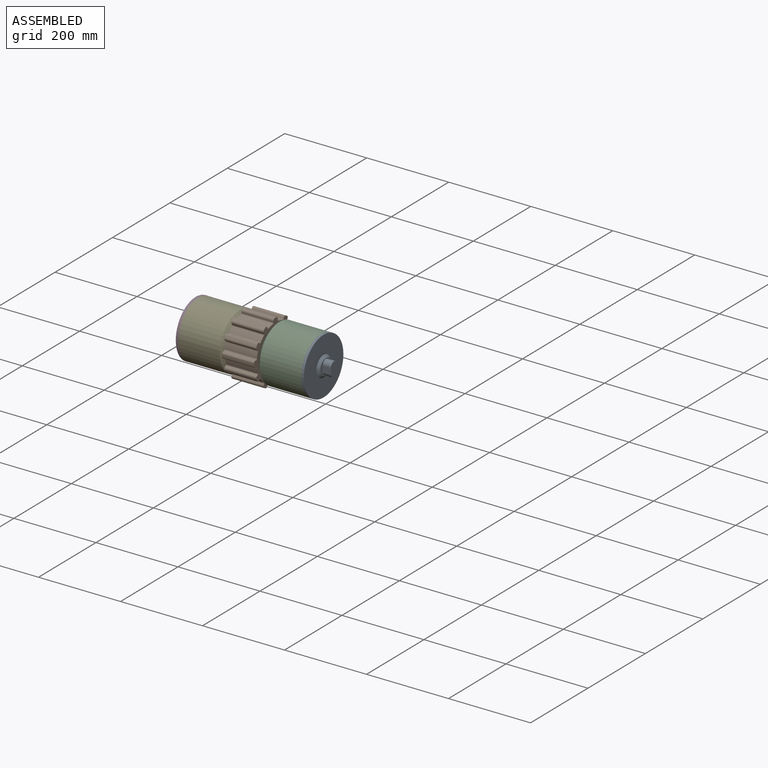
[diagram: assembled view]
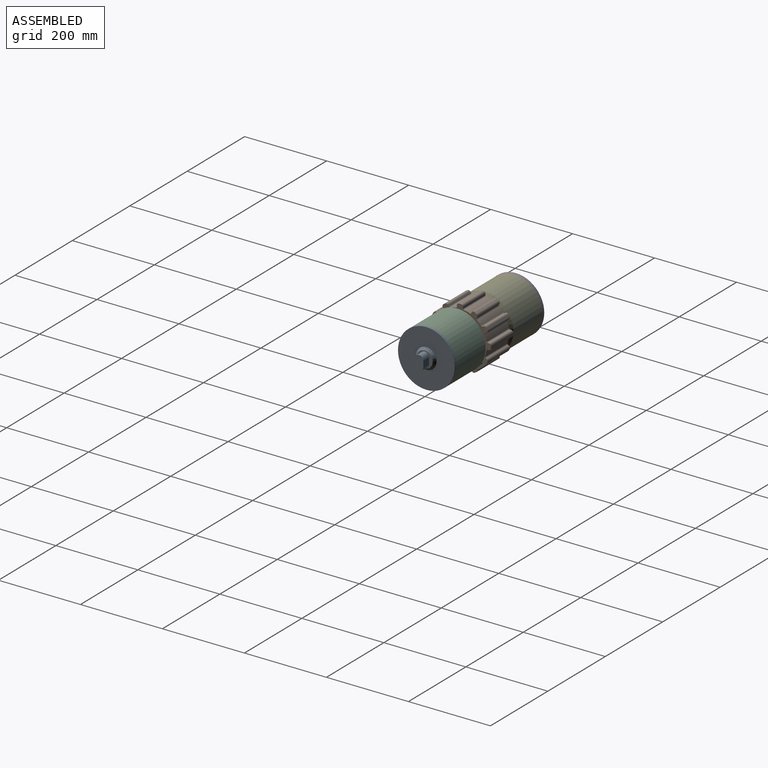
[diagram: assembled view, second angle]
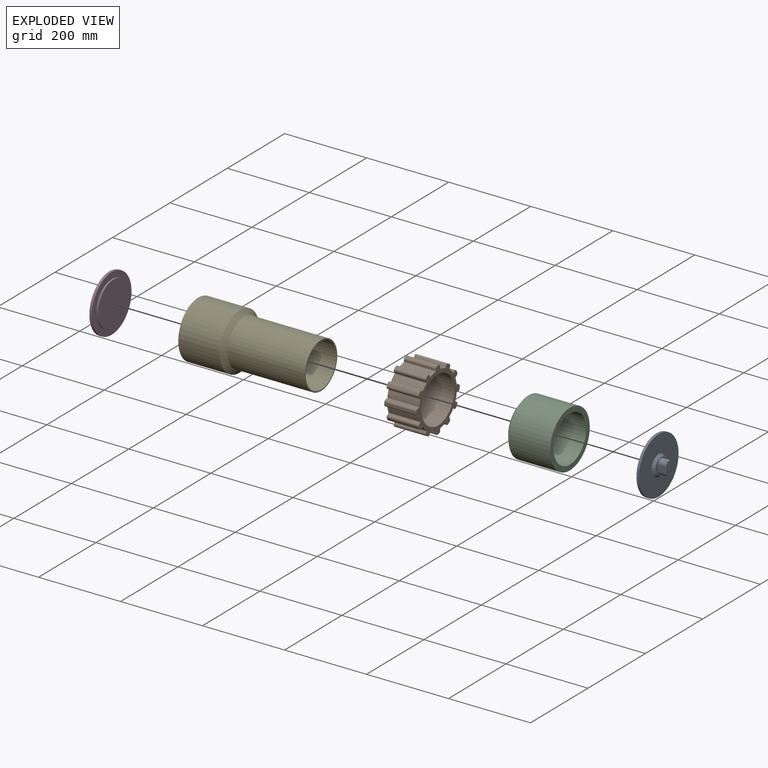
[diagram: exploded view]
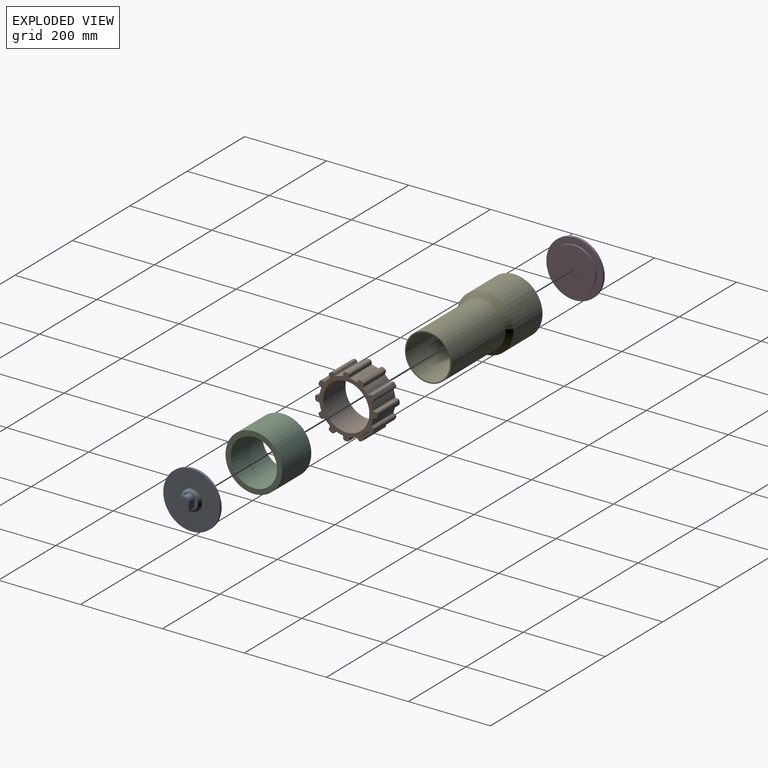
[diagram: exploded view, second angle]
ASSEMBLY  parts=5 mates=7
PART A: 12 faces, bbox 138.3x138.3x35.5 mm
  f0: plane 39x39mm, normal (0,0,1), area 554.2mm2, adj f2,f7,f8,f9,f10
  f1: plane 107x107mm, normal (0,0,-1), area 8992mm2, adj f6
  f2: cone r=25mm half-angle=45deg, axis (0,0,-1), area 1087.4mm2, adj f0,f3
  f3: plane 138.3x138.3mm, normal (0,0,1), area 13058.7mm2, adj f2,f4
  f4: cylinder r=69.15mm len=138.3mm, axis (0,0,1), area 2606.9mm2, adj f3,f5
  f5: plane 138.3x138.3mm, normal (0,0,-1), area 6030.2mm2, adj f4,f6
  f6: cylinder r=53.5mm len=107mm, axis (0,0,1), area 1344.6mm2, adj f1,f5
  f7: cylinder r=10.5mm len=21mm, axis (0,0,-1), area 659.7mm2, adj f0,f8,f10,f11
  f8: plane 20x14mm, normal (-1,0,0), area 280mm2, adj f0,f7,f9,f11
  f9: cylinder r=10.5mm len=21mm, axis (0,0,-1), area 659.7mm2, adj f0,f8,f10,f11
  f10: plane 20x14mm, normal (1,0,0), area 280mm2, adj f0,f7,f9,f11
  f11: plane 35x21mm, normal (0,0,1), area 640.4mm2, adj f7,f8,f9,f10
PART B: 99 faces, bbox 151.4x78x151.4 mm
  f0: cylinder r=65.7mm len=78mm, axis (0,1,0), area 1175mm2, adj f13,f14,f21,f97
  f1: cylinder r=65.7mm len=78mm, axis (0,1,0), area 1175mm2, adj f13,f14,f90,f98
  f2: cylinder r=65.7mm len=78mm, axis (0,1,0), area 1175mm2, adj f13,f14,f83,f91
  f3: cylinder r=65.7mm len=78mm, axis (0,1,0), area 1175mm2, adj f13,f14,f76,f84
  f4: cylinder r=65.7mm len=78mm, axis (0,1,0), area 1175mm2, adj f13,f14,f69,f77
  f5: cylinder r=65.7mm len=78mm, axis (0,1,0), area 1175mm2, adj f13,f14,f62,f70
  f6: cylinder r=65.7mm len=78mm, axis (0,1,0), area 1175mm2, adj f13,f14,f55,f63
  f7: cylinder r=65.7mm len=78mm, axis (0,1,0), area 1175mm2, adj f13,f14,f48,f56
  f8: cylinder r=65.7mm len=78mm, axis (0,1,0), area 1175mm2, adj f13,f14,f41,f49
  f9: cylinder r=65.7mm len=78mm, axis (0,1,0), area 1175mm2, adj f13,f14,f34,f42
  f10: cylinder r=65.7mm len=78mm, axis (0,1,0), area 1175mm2, adj f13,f14,f27,f35
  f11: cylinder r=65.7mm len=78mm, axis (0,1,0), area 1175mm2, adj f13,f14,f20,f28
  f12: cylinder r=56.5mm len=113mm, axis (0,1,0), area 27690mm2, adj f13,f14
  f13: plane 151.4x151.4mm, normal (0,-1,0), area 5246mm2, adj f0,f1,f2,f3,f4,f5,f6,f7
  f14: plane 151.4x151.4mm, normal (0,1,0), area 5246mm2, adj f0,f1,f2,f3,f4,f5,f6,f7
  f15: plane 78x3.19mm, normal (-1,0,0), area 249mm2, adj f13,f14,f18,f20
  f16: plane 78x3.19mm, normal (1,0,0), area 249mm2, adj f13,f14,f19,f21
  f17: cylinder r=75.7mm len=78mm, axis (0,-1,0), area 417.7mm2, adj f13,f14,f18,f19
  f18: cylinder r=5mm len=78mm, axis (0,-1,0), area 598.8mm2, adj f13,f14,f15,f17
  f19: cylinder r=5mm len=78mm, axis (0,-1,0), area 598.8mm2, adj f13,f14,f16,f17
  f20: cylinder r=2.5mm len=78mm, axis (0,1,0), area 277.6mm2, adj f11,f13,f14,f15
  f21: cylinder r=2.5mm len=78mm, axis (0,1,0), area 277.6mm2, adj f0,f13,f14,f16
  f22: plane 78x2.77mm, normal (-0.87,0,-0.5), area 249mm2, adj f13,f14,f25,f27
  f23: plane 78x2.77mm, normal (0.87,0,0.5), area 249mm2, adj f13,f14,f26,f28
  f24: cylinder r=75.7mm len=78mm, axis (0,-1,0), area 417.7mm2, adj f13,f14,f25,f26
  f25: cylinder r=5mm len=78mm, axis (0,-1,0), area 598.8mm2, adj f13,f14,f22,f24
  f26: cylinder r=5mm len=78mm, axis (0,-1,0), area 598.8mm2, adj f13,f14,f23,f24
  f27: cylinder r=2.5mm len=78mm, axis (0,1,0), area 277.6mm2, adj f10,f13,f14,f22
  f28: cylinder r=2.5mm len=78mm, axis (0,1,0), area 277.6mm2, adj f11,f13,f14,f23
  f29: plane 78x2.77mm, normal (-0.5,0,-0.87), area 249mm2, adj f13,f14,f32,f34
  f30: plane 78x2.77mm, normal (0.5,0,0.87), area 249mm2, adj f13,f14,f33,f35
  f31: cylinder r=75.7mm len=78mm, axis (0,-1,0), area 417.7mm2, adj f13,f14,f32,f33
  f32: cylinder r=5mm len=78mm, axis (0,-1,0), area 598.8mm2, adj f13,f14,f29,f31
  f33: cylinder r=5mm len=78mm, axis (0,-1,0), area 598.8mm2, adj f13,f14,f30,f31
  f34: cylinder r=2.5mm len=78mm, axis (0,1,0), area 277.6mm2, adj f9,f13,f14,f29
  f35: cylinder r=2.5mm len=78mm, axis (0,1,0), area 277.6mm2, adj f10,f13,f14,f30
  f36: plane 78x3.19mm, normal (0,0,-1), area 249mm2, adj f13,f14,f39,f41
  f37: plane 78x3.19mm, normal (0,0,1), area 249mm2, adj f13,f14,f40,f42
  f38: cylinder r=75.7mm len=78mm, axis (0,-1,0), area 417.7mm2, adj f13,f14,f39,f40
  f39: cylinder r=5mm len=78mm, axis (0,-1,0), area 598.8mm2, adj f13,f14,f36,f38
  f40: cylinder r=5mm len=78mm, axis (0,-1,0), area 598.8mm2, adj f13,f14,f37,f38
  f41: cylinder r=2.5mm len=78mm, axis (0,1,0), area 277.6mm2, adj f8,f13,f14,f36
  f42: cylinder r=2.5mm len=78mm, axis (0,1,0), area 277.6mm2, adj f9,f13,f14,f37
  f43: plane 78x2.77mm, normal (0.5,0,-0.87), area 249mm2, adj f13,f14,f46,f48
  f44: plane 78x2.77mm, normal (-0.5,0,0.87), area 249mm2, adj f13,f14,f47,f49
  f45: cylinder r=75.7mm len=78mm, axis (0,-1,0), area 417.7mm2, adj f13,f14,f46,f47
  f46: cylinder r=5mm len=78mm, axis (0,-1,0), area 598.8mm2, adj f13,f14,f43,f45
  f47: cylinder r=5mm len=78mm, axis (0,-1,0), area 598.8mm2, adj f13,f14,f44,f45
  f48: cylinder r=2.5mm len=78mm, axis (0,1,0), area 277.6mm2, adj f7,f13,f14,f43
  f49: cylinder r=2.5mm len=78mm, axis (0,1,0), area 277.6mm2, adj f8,f13,f14,f44
  f50: plane 78x2.77mm, normal (0.87,0,-0.5), area 249mm2, adj f13,f14,f53,f55
  f51: plane 78x2.77mm, normal (-0.87,0,0.5), area 249mm2, adj f13,f14,f54,f56
  f52: cylinder r=75.7mm len=78mm, axis (0,-1,0), area 417.7mm2, adj f13,f14,f53,f54
  f53: cylinder r=5mm len=78mm, axis (0,-1,0), area 598.8mm2, adj f13,f14,f50,f52
  f54: cylinder r=5mm len=78mm, axis (0,-1,0), area 598.8mm2, adj f13,f14,f51,f52
  f55: cylinder r=2.5mm len=78mm, axis (0,1,0), area 277.6mm2, adj f6,f13,f14,f50
  f56: cylinder r=2.5mm len=78mm, axis (0,1,0), area 277.6mm2, adj f7,f13,f14,f51
  f57: plane 78x3.19mm, normal (1,0,0), area 249mm2, adj f13,f14,f60,f62
  f58: plane 78x3.19mm, normal (-1,0,0), area 249mm2, adj f13,f14,f61,f63
  f59: cylinder r=75.7mm len=78mm, axis (0,-1,0), area 417.7mm2, adj f13,f14,f60,f61
  f60: cylinder r=5mm len=78mm, axis (0,-1,0), area 598.8mm2, adj f13,f14,f57,f59
  f61: cylinder r=5mm len=78mm, axis (0,-1,0), area 598.8mm2, adj f13,f14,f58,f59
  f62: cylinder r=2.5mm len=78mm, axis (0,1,0), area 277.6mm2, adj f5,f13,f14,f57
  f63: cylinder r=2.5mm len=78mm, axis (0,1,0), area 277.6mm2, adj f6,f13,f14,f58
  f64: plane 78x2.77mm, normal (0.87,0,0.5), area 249mm2, adj f13,f14,f67,f69
  f65: plane 78x2.77mm, normal (-0.87,0,-0.5), area 249mm2, adj f13,f14,f68,f70
  f66: cylinder r=75.7mm len=78mm, axis (0,-1,0), area 417.7mm2, adj f13,f14,f67,f68
  f67: cylinder r=5mm len=78mm, axis (0,-1,0), area 598.8mm2, adj f13,f14,f64,f66
  f68: cylinder r=5mm len=78mm, axis (0,-1,0), area 598.8mm2, adj f13,f14,f65,f66
  f69: cylinder r=2.5mm len=78mm, axis (0,1,0), area 277.6mm2, adj f4,f13,f14,f64
  f70: cylinder r=2.5mm len=78mm, axis (0,1,0), area 277.6mm2, adj f5,f13,f14,f65
  f71: plane 78x2.77mm, normal (0.5,0,0.87), area 249mm2, adj f13,f14,f74,f76
  f72: plane 78x2.77mm, normal (-0.5,0,-0.87), area 249mm2, adj f13,f14,f75,f77
  f73: cylinder r=75.7mm len=78mm, axis (0,-1,0), area 417.7mm2, adj f13,f14,f74,f75
  f74: cylinder r=5mm len=78mm, axis (0,-1,0), area 598.8mm2, adj f13,f14,f71,f73
  f75: cylinder r=5mm len=78mm, axis (0,-1,0), area 598.8mm2, adj f13,f14,f72,f73
  f76: cylinder r=2.5mm len=78mm, axis (0,1,0), area 277.6mm2, adj f3,f13,f14,f71
  f77: cylinder r=2.5mm len=78mm, axis (0,1,0), area 277.6mm2, adj f4,f13,f14,f72
  f78: plane 78x3.19mm, normal (0,0,1), area 249mm2, adj f13,f14,f81,f83
  f79: plane 78x3.19mm, normal (0,0,-1), area 249mm2, adj f13,f14,f82,f84
  f80: cylinder r=75.7mm len=78mm, axis (0,-1,0), area 417.7mm2, adj f13,f14,f81,f82
  f81: cylinder r=5mm len=78mm, axis (0,-1,0), area 598.8mm2, adj f13,f14,f78,f80
  f82: cylinder r=5mm len=78mm, axis (0,-1,0), area 598.8mm2, adj f13,f14,f79,f80
  f83: cylinder r=2.5mm len=78mm, axis (0,1,0), area 277.6mm2, adj f2,f13,f14,f78
  f84: cylinder r=2.5mm len=78mm, axis (0,1,0), area 277.6mm2, adj f3,f13,f14,f79
  f85: plane 78x2.77mm, normal (-0.5,0,0.87), area 249mm2, adj f13,f14,f88,f90
  f86: plane 78x2.77mm, normal (0.5,0,-0.87), area 249mm2, adj f13,f14,f89,f91
  f87: cylinder r=75.7mm len=78mm, axis (0,-1,0), area 417.7mm2, adj f13,f14,f88,f89
  f88: cylinder r=5mm len=78mm, axis (0,-1,0), area 598.8mm2, adj f13,f14,f85,f87
  f89: cylinder r=5mm len=78mm, axis (0,-1,0), area 598.8mm2, adj f13,f14,f86,f87
  f90: cylinder r=2.5mm len=78mm, axis (0,1,0), area 277.6mm2, adj f1,f13,f14,f85
  f91: cylinder r=2.5mm len=78mm, axis (0,1,0), area 277.6mm2, adj f2,f13,f14,f86
  f92: plane 78x2.77mm, normal (-0.87,0,0.5), area 249mm2, adj f13,f14,f95,f97
  f93: plane 78x2.77mm, normal (0.87,0,-0.5), area 249mm2, adj f13,f14,f96,f98
  f94: cylinder r=75.7mm len=78mm, axis (0,-1,0), area 417.7mm2, adj f13,f14,f95,f96
  f95: cylinder r=5mm len=78mm, axis (0,-1,0), area 598.8mm2, adj f13,f14,f92,f94
  f96: cylinder r=5mm len=78mm, axis (0,-1,0), area 598.8mm2, adj f13,f14,f93,f94
  f97: cylinder r=2.5mm len=78mm, axis (0,1,0), area 277.6mm2, adj f0,f13,f14,f92
  f98: cylinder r=2.5mm len=78mm, axis (0,1,0), area 277.6mm2, adj f1,f13,f14,f93
PART C: 4 faces, bbox 111x138.3x138.3 mm
  f0: cone r=69.15mm half-angle=53.1deg, axis (1,0,0), area 6244.8mm2, adj f1,f3
  f1: cylinder r=56.5mm len=113mm, axis (-1,0,0), area 39405mm2, adj f0,f2
  f2: plane 138.3x138.3mm, normal (1,0,0), area 4993.5mm2, adj f1,f3
  f3: cylinder r=69.15mm len=138.3mm, axis (-1,0,0), area 44099.9mm2, adj f0,f2
PART D: same geometry as A
PART E: 6 faces, bbox 300x138.3x138.3 mm
  f0: plane 138.3x138.3mm, normal (-1,0,0), area 6030.2mm2, adj f1,f5
  f1: cylinder r=53.5mm len=300mm, axis (-1,0,0), area 100845.1mm2, adj f0,f2
  f2: plane 113x113mm, normal (1,0,0), area 1036.7mm2, adj f1,f3
  f3: cylinder r=56.5mm len=189mm, axis (-1,0,0), area 67095mm2, adj f2,f4
  f4: cone r=69.15mm half-angle=53.1deg, axis (-1,0,0), area 6244.8mm2, adj f3,f5
  f5: cylinder r=69.15mm len=138.3mm, axis (-1,0,0), area 44099.9mm2, adj f0,f4
PLACE A rot(axis=(0.58,0.58,0.58),120deg) t=(185,0,0)mm
PLACE B rot(axis=(0,0,-1),90deg) t=(39,0,0)mm
PLACE C rot(axis=(-1,0,0),90deg) t=(78,0,0)mm
PLACE D rot(axis=(0.58,-0.58,-0.58),120deg) t=(-107,0,0)mm
PLACE E at identity fixed
MATE cylindrical B.f0 <-> E.f1  axis (1,0,0) through (39,0,0)mm
MATE planar E.f1 <-> D.f2  axis (-1,0,0) through (-111,0,0)mm
MATE planar B.f12 <-> C.f0  axis (1,0,0) through (78,0,0)mm
MATE cylindrical A.f2 <-> E.f1  axis (1,0,0) through (187,0,0)mm
MATE cylindrical D.f2 <-> E.f1  axis (-1,0,0) through (-109,0,0)mm
MATE planar C.f0 <-> A.f2  axis (1,0,0) through (189,0,0)mm
MATE cylindrical C.f0 <-> E.f1  axis (-1,0,0) through (189,0,0)mm
